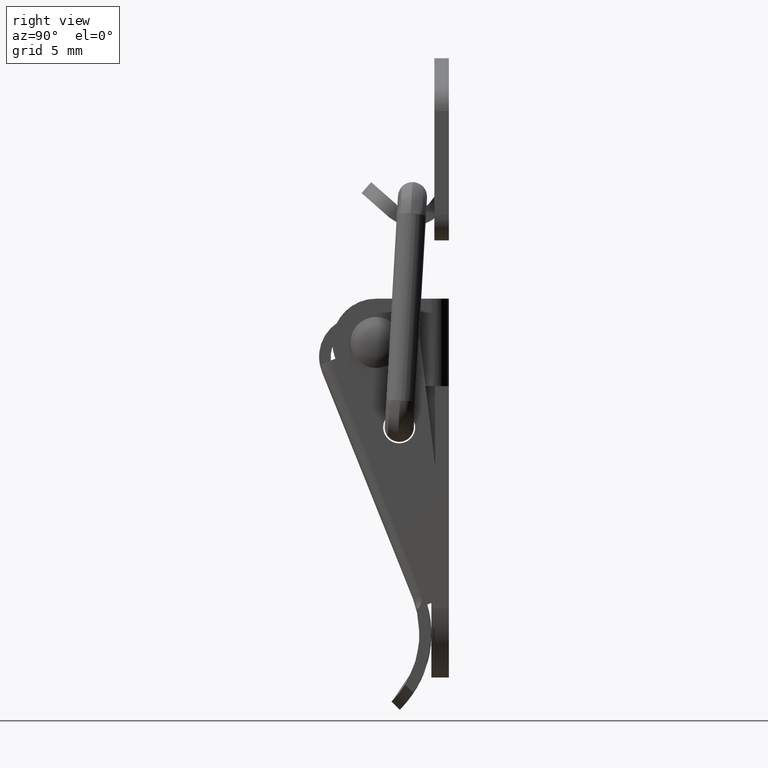
[diagram: clean part render]
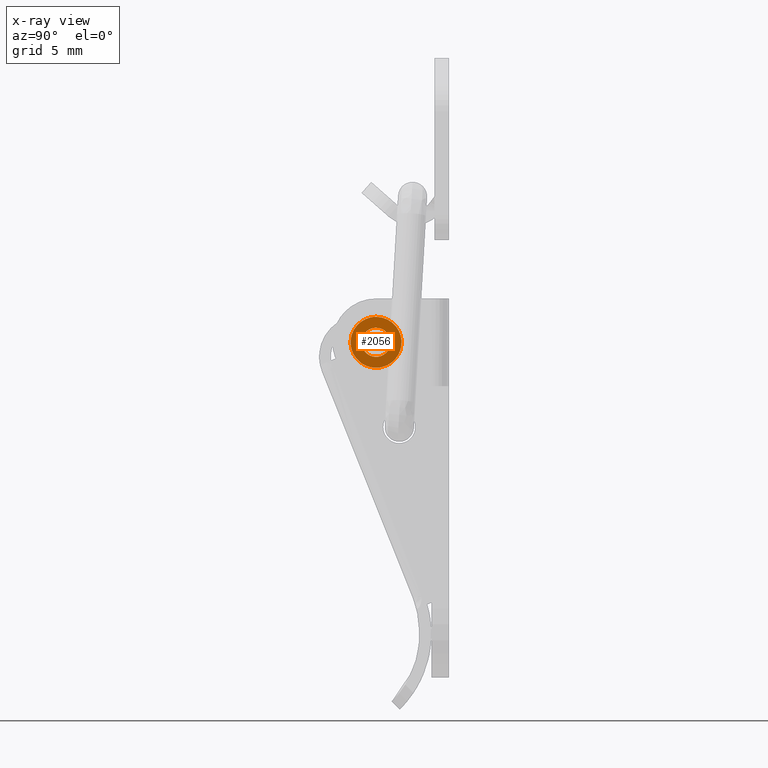
[diagram: x-ray — body ghosted, one internal face saturated and labeled with its STEP entity id]
A machine part, right view, then the same camera in x-ray: the body is ghosted and one INTERNAL B-rep face — a face not visible from any outside direction — is saturated and labeled: STEP entity #2056.
In plain terms, the highlighted face is a freeform B-spline surface patch.
Its self-contained STEP definition (entity closure, byte-faithful):
#1904=CARTESIAN_POINT('',(-1.506998888744335,-7.0,-9.881965283064083));
#1905=VERTEX_POINT('',#1904);
#1906=CARTESIAN_POINT('',(-2.500008415104275,-7.0,-10.999999517752190));
#1907=VERTEX_POINT('',#1906);
#1908=CARTESIAN_POINT('',(-1.506998888744334,-6.999999999999999,-9.881965283064083));
#1909=CARTESIAN_POINT('',(-1.500008415104275,-7.000000000000001,-9.940775398068599));
#1910=CARTESIAN_POINT('',(-1.500008415104275,-7.0,-9.999999517752189));
#1911=CARTESIAN_POINT('',(-1.500008415104276,-6.999999999999999,-10.999999517752190));
#1912=CARTESIAN_POINT('',(-2.500008415104275,-7.0,-10.999999517752190));
#1920=(BOUNDED_CURVE()B_SPLINE_CURVE(2,(#1908,#1909,#1910,#1911,#1912),.UNSPECIFIED.,.F.,.U.)B_SPLINE_CURVE_WITH_KNOTS((3,2,3),(0.229562473504974,0.250000000000000,0.500000000000000),.UNSPECIFIED.)CURVE()GEOMETRIC_REPRESENTATION_ITEM()RATIONAL_B_SPLINE_CURVE((0.956026754166972,0.976055948321146,1.0,0.707106781186548,1.0))REPRESENTATION_ITEM(''));
#1921=EDGE_CURVE('',#1905,#1907,#1920,.T.);
#1923=CARTESIAN_POINT('',(-3.498143213512917,-7.0,-10.061048057503280));
#1924=VERTEX_POINT('',#1923);
#1925=CARTESIAN_POINT('',(-2.500008415104275,-7.0,-10.999999517752190));
#1926=CARTESIAN_POINT('',(-3.440714481601630,-6.999999999999999,-10.999999517752189));
#1927=CARTESIAN_POINT('',(-3.498143213512917,-7.000000000000001,-10.061048057503278));
#1935=(BOUNDED_CURVE()B_SPLINE_CURVE(2,(#1925,#1926,#1927),.UNSPECIFIED.,.F.,.U.)B_SPLINE_CURVE_WITH_KNOTS((3,3),(0.500000000000000,0.739332962167209),.UNSPECIFIED.)CURVE()GEOMETRIC_REPRESENTATION_ITEM()RATIONAL_B_SPLINE_CURVE((1.0,0.719603993370752,0.976072041512979))REPRESENTATION_ITEM(''));
#1936=EDGE_CURVE('',#1907,#1924,#1935,.T.);
#1972=CARTESIAN_POINT('',(-2.500008415104275,-7.0,-8.999999517752190));
#1973=VERTEX_POINT('',#1972);
#1974=CARTESIAN_POINT('',(-2.500008415104275,-7.0,-8.999999517752190));
#1975=CARTESIAN_POINT('',(-1.611833889209379,-7.0,-8.999999517752190));
#1976=CARTESIAN_POINT('',(-1.506998888744334,-6.999999999999999,-9.881965283064083));
#1984=(BOUNDED_CURVE()B_SPLINE_CURVE(2,(#1974,#1975,#1976),.UNSPECIFIED.,.F.,.U.)B_SPLINE_CURVE_WITH_KNOTS((3,3),(0.0,0.229562473504974),.UNSPECIFIED.)CURVE()GEOMETRIC_REPRESENTATION_ITEM()RATIONAL_B_SPLINE_CURVE((1.0,0.731050832865401,0.956026754166972))REPRESENTATION_ITEM(''));
#1985=EDGE_CURVE('',#1973,#1905,#1984,.T.);
#1991=CARTESIAN_POINT('',(-3.498143213512917,-7.0,-10.061048057503278));
#1992=CARTESIAN_POINT('',(-3.500008415104275,-7.000000000000001,-10.030552281267617));
#1993=CARTESIAN_POINT('',(-3.500008415104275,-7.0,-9.999999517752189));
#1994=CARTESIAN_POINT('',(-3.500008415104275,-6.999999999999999,-8.999999517752192));
#1995=CARTESIAN_POINT('',(-2.500008415104275,-7.0,-8.999999517752190));
#2003=(BOUNDED_CURVE()B_SPLINE_CURVE(2,(#1991,#1992,#1993,#1994,#1995),.UNSPECIFIED.,.F.,.U.)B_SPLINE_CURVE_WITH_KNOTS((3,2,3),(0.739332962167209,0.750000000000000,1.0),.UNSPECIFIED.)CURVE()GEOMETRIC_REPRESENTATION_ITEM()RATIONAL_B_SPLINE_CURVE((0.976072041512978,0.987502787815795,1.0,0.707106781186548,1.0))REPRESENTATION_ITEM(''));
#2004=EDGE_CURVE('',#1924,#1973,#2003,.T.);
#2009=CARTESIAN_POINT('',(-4.424803710230167,-7.0,-8.075204411909683));
#2010=CARTESIAN_POINT('',(-4.424803710230167,-7.0,-11.924794498426859));
#2011=CARTESIAN_POINT('',(-0.575212900934678,-7.0,-8.075204411909683));
#2012=CARTESIAN_POINT('',(-0.575212900934678,-7.0,-11.924794498426870));
#2013=B_SPLINE_SURFACE_WITH_KNOTS('',1,1,((#2009,#2011),(#2010,#2012)),.UNSPECIFIED.,.F.,.F.,.U.,(2,2),(2,2),(0.0,3.849590086517182),(0.0,3.849590809295489),.UNSPECIFIED.);
#2014=CARTESIAN_POINT('',(-2.500008415104275,-7.0,-8.250026398987270));
#2015=VERTEX_POINT('',#2014);
#2016=CARTESIAN_POINT('',(-2.500008415104275,-7.0,-11.749972636517111));
#2017=VERTEX_POINT('',#2016);
#2018=CARTESIAN_POINT('',(-2.500008415104275,-7.0,-8.250026398987270));
#2019=CARTESIAN_POINT('',(-0.750035296339355,-6.999999999999999,-8.250026398987270));
#2020=CARTESIAN_POINT('',(-0.750035296339355,-7.0,-9.999999517752189));
#2021=CARTESIAN_POINT('',(-0.750035296339355,-6.999999999999999,-11.749972636517109));
#2022=CARTESIAN_POINT('',(-2.500008415104275,-7.0,-11.749972636517111));
#2030=(BOUNDED_CURVE()B_SPLINE_CURVE(2,(#2018,#2019,#2020,#2021,#2022),.UNSPECIFIED.,.F.,.U.)B_SPLINE_CURVE_WITH_KNOTS((3,2,3),(0.0,0.250000000000000,0.500000000000000),.UNSPECIFIED.)CURVE()GEOMETRIC_REPRESENTATION_ITEM()RATIONAL_B_SPLINE_CURVE((1.0,0.707106781186548,1.0,0.707106781186548,1.0))REPRESENTATION_ITEM(''));
#2031=EDGE_CURVE('',#2015,#2017,#2030,.T.);
#2032=ORIENTED_EDGE('',*,*,#2031,.T.);
#2033=CARTESIAN_POINT('',(-2.500008415104275,-7.0,-11.749972636517111));
#2034=CARTESIAN_POINT('',(-4.249981533869195,-6.999999999999999,-11.749972636517109));
#2035=CARTESIAN_POINT('',(-4.249981533869195,-7.0,-9.999999517752189));
#2036=CARTESIAN_POINT('',(-4.249981533869195,-6.999999999999999,-8.250026398987270));
#2037=CARTESIAN_POINT('',(-2.500008415104275,-7.0,-8.250026398987270));
#2045=(BOUNDED_CURVE()B_SPLINE_CURVE(2,(#2033,#2034,#2035,#2036,#2037),.UNSPECIFIED.,.F.,.U.)B_SPLINE_CURVE_WITH_KNOTS((3,2,3),(0.500000000000000,0.750000000000000,1.0),.UNSPECIFIED.)CURVE()GEOMETRIC_REPRESENTATION_ITEM()RATIONAL_B_SPLINE_CURVE((1.0,0.707106781186548,1.0,0.707106781186548,1.0))REPRESENTATION_ITEM(''));
#2046=EDGE_CURVE('',#2017,#2015,#2045,.T.);
#2047=ORIENTED_EDGE('',*,*,#2046,.T.);
#2048=EDGE_LOOP('',(#2032,#2047));
#2049=FACE_OUTER_BOUND('',#2048,.T.);
#2050=ORIENTED_EDGE('',*,*,#1936,.F.);
#2051=ORIENTED_EDGE('',*,*,#1921,.F.);
#2052=ORIENTED_EDGE('',*,*,#1985,.F.);
#2053=ORIENTED_EDGE('',*,*,#2004,.F.);
#2054=EDGE_LOOP('',(#2050,#2051,#2052,#2053));
#2055=FACE_BOUND('',#2054,.T.);
#2056=ADVANCED_FACE('',(#2049,#2055),#2013,.F.);